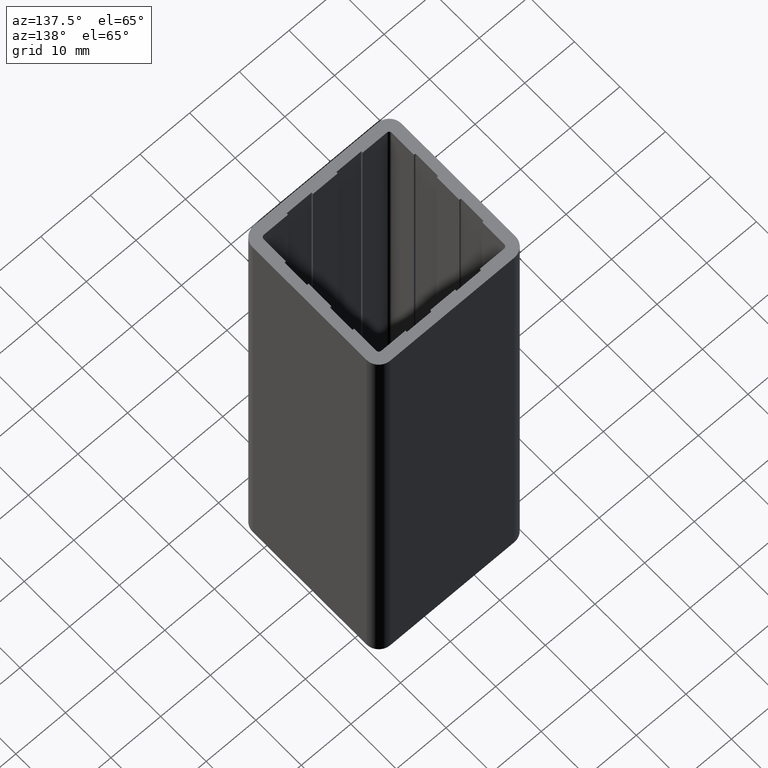
[diagram: clean part render]
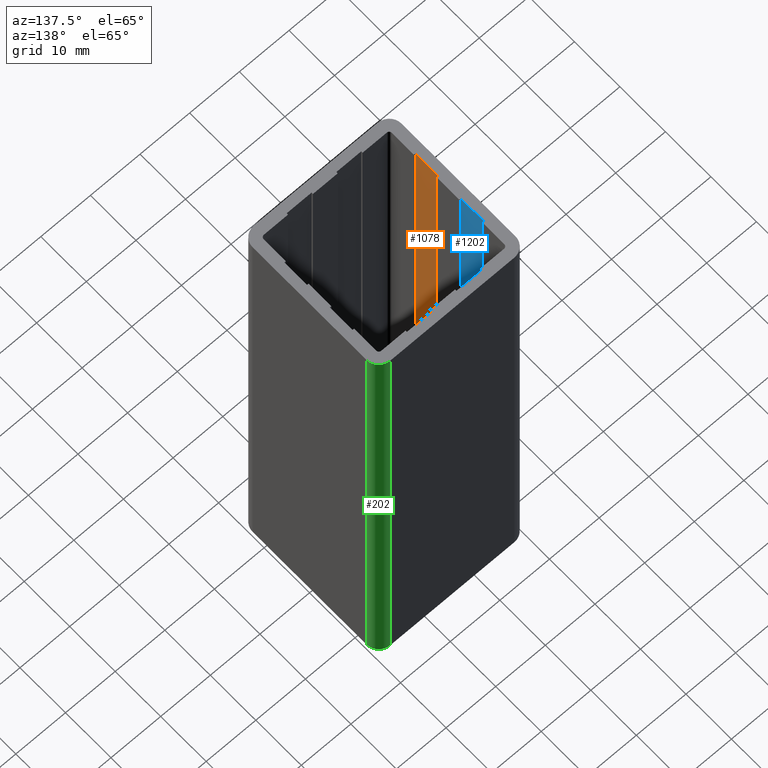
[diagram: same view with three faces highlighted in distinct colors, each labeled with its STEP entity id]
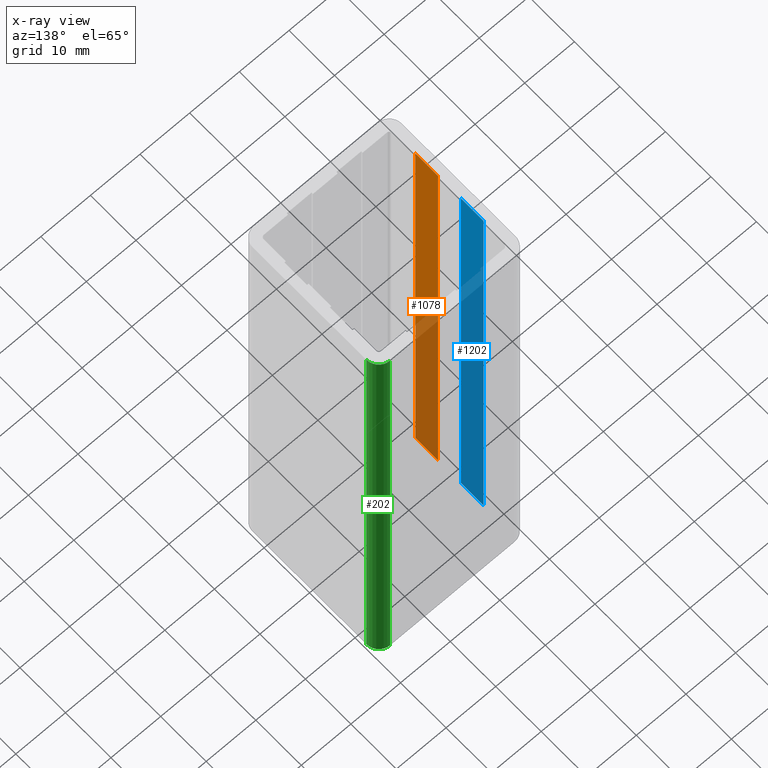
[diagram: x-ray of the same camera — body ghosted, the three highlighted faces saturated]
A machine part, auxiliary view with three faces highlighted in distinct colors.
The next image is the same camera in x-ray (body ghosted, the three faces saturated) — at least one of them is partly hidden behind the body in this view.
Their STEP definitions:

[orange] entity #1078 — the highlighted planar face has unit normal (1, 0, 0).
#1022=CARTESIAN_POINT('',(-28.199999997152077,-7.499999999243528,0.0));
#1023=VERTEX_POINT('',#1022);
#1030=CARTESIAN_POINT('',(-28.199999997152077,-7.499999999243528,100.0));
#1031=VERTEX_POINT('',#1030);
#1032=CARTESIAN_POINT('',(-28.199999997152077,-7.499999999243528,0.0));
#1033=DIRECTION('',(0.0,0.0,1.0));
#1034=VECTOR('',#1033,100.0);
#1035=LINE('',#1032,#1034);
#1036=EDGE_CURVE('',#1023,#1031,#1035,.T.);
#1048=CARTESIAN_POINT('',(-28.199999997152077,-7.499999999243528,0.0));
#1049=DIRECTION('',(1.0,0.0,0.0));
#1050=DIRECTION('',(0.0,1.0,0.0));
#1051=AXIS2_PLACEMENT_3D('',#1048,#1049,#1050);
#1052=PLANE('',#1051);
#1053=CARTESIAN_POINT('',(-28.199999997152077,-2.499999999748525,0.0));
#1054=VERTEX_POINT('',#1053);
#1055=CARTESIAN_POINT('',(-28.199999997152077,-7.499999999243528,0.0));
#1056=DIRECTION('',(0.0,1.0,0.0));
#1057=VECTOR('',#1056,4.999999999495003);
#1058=LINE('',#1055,#1057);
#1059=EDGE_CURVE('',#1023,#1054,#1058,.T.);
#1060=ORIENTED_EDGE('',*,*,#1059,.T.);
#1061=CARTESIAN_POINT('',(-28.199999997152077,-2.499999999748525,100.0));
#1062=VERTEX_POINT('',#1061);
#1063=CARTESIAN_POINT('',(-28.199999997152077,-2.499999999748525,0.0));
#1064=DIRECTION('',(0.0,0.0,1.0));
#1065=VECTOR('',#1064,100.0);
#1066=LINE('',#1063,#1065);
#1067=EDGE_CURVE('',#1054,#1062,#1066,.T.);
#1068=ORIENTED_EDGE('',*,*,#1067,.T.);
#1069=CARTESIAN_POINT('',(-28.199999997152077,-7.499999999243528,100.0));
#1070=DIRECTION('',(0.0,1.0,0.0));
#1071=VECTOR('',#1070,4.999999999495003);
#1072=LINE('',#1069,#1071);
#1073=EDGE_CURVE('',#1031,#1062,#1072,.T.);
#1074=ORIENTED_EDGE('',*,*,#1073,.F.);
#1075=ORIENTED_EDGE('',*,*,#1036,.F.);
#1076=EDGE_LOOP('',(#1060,#1068,#1074,#1075));
#1077=FACE_OUTER_BOUND('',#1076,.T.);
#1078=ADVANCED_FACE('',(#1077),#1052,.T.);

[blue] entity #1202 — the highlighted planar face has unit normal (1, 0, 0).
#1146=CARTESIAN_POINT('',(-28.199999997152077,2.499999999747388,0.0));
#1147=VERTEX_POINT('',#1146);
#1154=CARTESIAN_POINT('',(-28.199999997152077,2.499999999747388,100.0));
#1155=VERTEX_POINT('',#1154);
#1156=CARTESIAN_POINT('',(-28.199999997152077,2.499999999747388,0.0));
#1157=DIRECTION('',(0.0,0.0,1.0));
#1158=VECTOR('',#1157,100.0);
#1159=LINE('',#1156,#1158);
#1160=EDGE_CURVE('',#1147,#1155,#1159,.T.);
#1172=CARTESIAN_POINT('',(-28.199999997152077,2.499999999747388,0.0));
#1173=DIRECTION('',(1.0,0.0,0.0));
#1174=DIRECTION('',(0.0,1.0,0.0));
#1175=AXIS2_PLACEMENT_3D('',#1172,#1173,#1174);
#1176=PLANE('',#1175);
#1177=CARTESIAN_POINT('',(-28.199999997152077,7.499999999241481,0.0));
#1178=VERTEX_POINT('',#1177);
#1179=CARTESIAN_POINT('',(-28.199999997152077,2.499999999747388,0.0));
#1180=DIRECTION('',(0.0,1.0,0.0));
#1181=VECTOR('',#1180,4.999999999494094);
#1182=LINE('',#1179,#1181);
#1183=EDGE_CURVE('',#1147,#1178,#1182,.T.);
#1184=ORIENTED_EDGE('',*,*,#1183,.T.);
#1185=CARTESIAN_POINT('',(-28.199999997152077,7.499999999241481,100.0));
#1186=VERTEX_POINT('',#1185);
#1187=CARTESIAN_POINT('',(-28.199999997152077,7.499999999241481,0.0));
#1188=DIRECTION('',(0.0,0.0,1.0));
#1189=VECTOR('',#1188,100.0);
#1190=LINE('',#1187,#1189);
#1191=EDGE_CURVE('',#1178,#1186,#1190,.T.);
#1192=ORIENTED_EDGE('',*,*,#1191,.T.);
#1193=CARTESIAN_POINT('',(-28.199999997152077,2.499999999747388,100.0));
#1194=DIRECTION('',(0.0,1.0,0.0));
#1195=VECTOR('',#1194,4.999999999494094);
#1196=LINE('',#1193,#1195);
#1197=EDGE_CURVE('',#1155,#1186,#1196,.T.);
#1198=ORIENTED_EDGE('',*,*,#1197,.F.);
#1199=ORIENTED_EDGE('',*,*,#1160,.F.);
#1200=EDGE_LOOP('',(#1184,#1192,#1198,#1199));
#1201=FACE_OUTER_BOUND('',#1200,.T.);
#1202=ADVANCED_FACE('',(#1201),#1176,.T.);

[green] entity #202 — the highlighted cylindrical surface (edge-blend (fillet) strip) has radius 2.5 mm, axis along (0, 0, 1).
#144=CARTESIAN_POINT('',(-1.136868E-013,12.499999998737394,0.0));
#145=VERTEX_POINT('',#144);
#152=CARTESIAN_POINT('',(-1.136868E-013,12.499999998737394,100.0));
#153=VERTEX_POINT('',#152);
#154=CARTESIAN_POINT('',(-1.136868E-013,12.499999998737394,0.0));
#155=DIRECTION('',(0.0,0.0,1.0));
#156=VECTOR('',#155,100.0);
#157=LINE('',#154,#156);
#158=EDGE_CURVE('',#145,#153,#157,.T.);
#170=CARTESIAN_POINT('',(-2.499999999747615,12.499999998737394,0.0));
#171=DIRECTION('',(0.0,0.0,1.0));
#172=DIRECTION('',(1.0,0.0,0.0));
#173=AXIS2_PLACEMENT_3D('',#170,#171,#172);
#174=CYLINDRICAL_SURFACE('',#173,2.499999999747499);
#175=CARTESIAN_POINT('',(-2.499999999747615,14.999999998484327,0.0));
#176=VERTEX_POINT('',#175);
#177=CARTESIAN_POINT('',(-2.499999999747615,12.499999998737394,0.0));
#178=DIRECTION('',(0.0,0.0,1.0));
#179=DIRECTION('',(1.0,0.0,0.0));
#180=AXIS2_PLACEMENT_3D('',#177,#178,#179);
#181=CIRCLE('',#180,2.499999999747499);
#182=EDGE_CURVE('',#145,#176,#181,.T.);
#183=ORIENTED_EDGE('',*,*,#182,.T.);
#184=CARTESIAN_POINT('',(-2.499999999747615,14.999999998484327,100.0));
#185=VERTEX_POINT('',#184);
#186=CARTESIAN_POINT('',(-2.499999999747615,14.999999998484327,0.0));
#187=DIRECTION('',(0.0,0.0,1.0));
#188=VECTOR('',#187,100.0);
#189=LINE('',#186,#188);
#190=EDGE_CURVE('',#176,#185,#189,.T.);
#191=ORIENTED_EDGE('',*,*,#190,.T.);
#192=CARTESIAN_POINT('',(-2.499999999747615,12.499999998737394,100.0));
#193=DIRECTION('',(0.0,0.0,1.0));
#194=DIRECTION('',(1.0,0.0,0.0));
#195=AXIS2_PLACEMENT_3D('',#192,#193,#194);
#196=CIRCLE('',#195,2.499999999747499);
#197=EDGE_CURVE('',#153,#185,#196,.T.);
#198=ORIENTED_EDGE('',*,*,#197,.F.);
#199=ORIENTED_EDGE('',*,*,#158,.F.);
#200=EDGE_LOOP('',(#183,#191,#198,#199));
#201=FACE_OUTER_BOUND('',#200,.T.);
#202=ADVANCED_FACE('',(#201),#174,.T.);